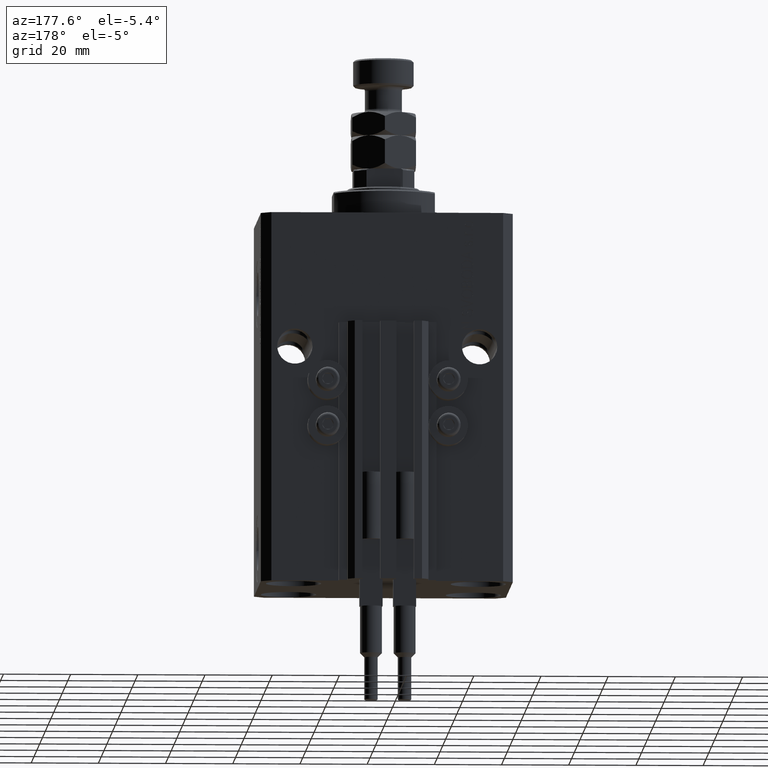
[diagram: clean part render]
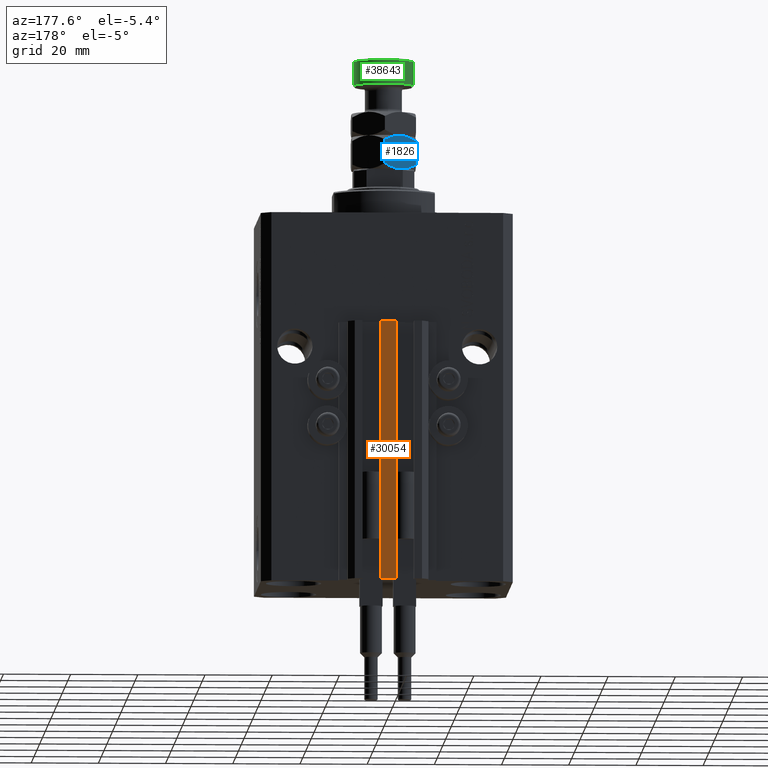
[diagram: same view with three faces highlighted in distinct colors, each labeled with its STEP entity id]
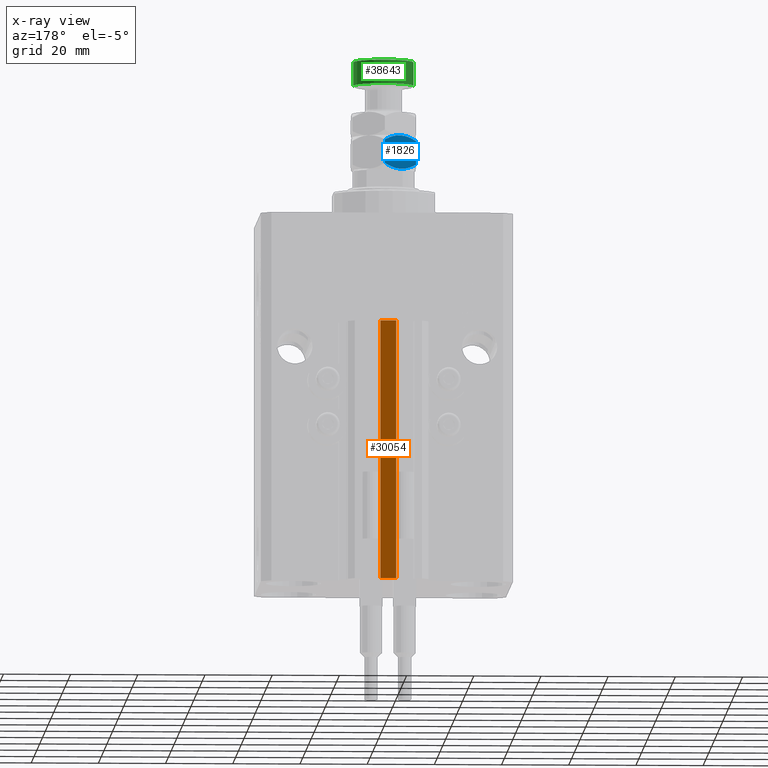
[diagram: x-ray of the same camera — body ghosted, the three highlighted faces saturated]
A machine part, auxiliary view with three faces highlighted in distinct colors.
The next image is the same camera in x-ray (body ghosted, the three faces saturated) — at least one of them is partly hidden behind the body in this view.
Their STEP definitions:

[orange] entity #30054 — the highlighted planar face has unit normal (0, -1, 0).
#56 = CARTESIAN_POINT ( 'NONE',  ( -2.350000000000003642, 35.50000000000001421, -110.0000000000000000 ) ) ;
#259 = EDGE_LOOP ( 'NONE', ( #10787, #25850, #9720, #36325 ) ) ;
#4440 = CARTESIAN_POINT ( 'NONE',  ( 2.349999999999999645, 35.50000000000001421, -33.00000000000000000 ) ) ;
#5366 = DIRECTION ( 'NONE',  ( 0.000000000000000000, -1.000000000000000000, 0.000000000000000000 ) ) ;
#9165 = CARTESIAN_POINT ( 'NONE',  ( -2.350000000000003642, 35.50000000000001421, -110.0000000000000000 ) ) ;
#9720 = ORIENTED_EDGE ( 'NONE', *, *, #24857, .F. ) ;
#10787 = ORIENTED_EDGE ( 'NONE', *, *, #25665, .T. ) ;
#11037 = LINE ( 'NONE', #56, #38716 ) ;
#12752 = LINE ( 'NONE', #27983, #32337 ) ;
#13667 = CARTESIAN_POINT ( 'NONE',  ( -2.350000000000003642, 35.50000000000001421, -33.00000000000000000 ) ) ;
#13846 = DIRECTION ( 'NONE',  ( 0.000000000000000000, -0.000000000000000000, -1.000000000000000000 ) ) ;
#19440 = AXIS2_PLACEMENT_3D ( 'NONE', #28330, #5366, #13846 ) ;
#20584 = VERTEX_POINT ( 'NONE', #9165 ) ;
#21822 = CARTESIAN_POINT ( 'NONE',  ( 2.349999999999999645, 35.50000000000001421, -110.0000000000000000 ) ) ;
#24839 = PLANE ( 'NONE',  #19440 ) ;
#24857 = EDGE_CURVE ( 'NONE', #20584, #25211, #31646, .T. ) ;
#25211 = VERTEX_POINT ( 'NONE', #21822 ) ;
#25665 = EDGE_CURVE ( 'NONE', #41445, #44903, #36358, .T. ) ;
#25850 = ORIENTED_EDGE ( 'NONE', *, *, #34434, .F. ) ;
#27901 = DIRECTION ( 'NONE',  ( 1.000000000000000000, 0.000000000000000000, 0.000000000000000000 ) ) ;
#27983 = CARTESIAN_POINT ( 'NONE',  ( 2.349999999999999645, 35.50000000000001421, -110.0000000000000000 ) ) ;
#28330 = CARTESIAN_POINT ( 'NONE',  ( -2.350000000000003642, 35.50000000000001421, -110.0000000000000000 ) ) ;
#28903 = DIRECTION ( 'NONE',  ( 1.000000000000000000, 0.000000000000000000, 0.000000000000000000 ) ) ;
#30054 = ADVANCED_FACE ( 'NONE', ( #47990 ), #24839, .F. ) ;
#31001 = DIRECTION ( 'NONE',  ( 0.000000000000000000, 0.000000000000000000, 1.000000000000000000 ) ) ;
#31646 = LINE ( 'NONE', #46820, #47902 ) ;
#32337 = VECTOR ( 'NONE', #38697, 1000.000000000000000 ) ;
#34434 = EDGE_CURVE ( 'NONE', #25211, #44903, #12752, .T. ) ;
#35212 = VECTOR ( 'NONE', #28903, 1000.000000000000000 ) ;
#35220 = EDGE_CURVE ( 'NONE', #20584, #41445, #11037, .T. ) ;
#35541 = CARTESIAN_POINT ( 'NONE',  ( -2.350000000000003642, 35.50000000000001421, -33.00000000000000000 ) ) ;
#36325 = ORIENTED_EDGE ( 'NONE', *, *, #35220, .T. ) ;
#36358 = LINE ( 'NONE', #13667, #35212 ) ;
#38697 = DIRECTION ( 'NONE',  ( 0.000000000000000000, 0.000000000000000000, 1.000000000000000000 ) ) ;
#38716 = VECTOR ( 'NONE', #31001, 1000.000000000000000 ) ;
#41445 = VERTEX_POINT ( 'NONE', #35541 ) ;
#44903 = VERTEX_POINT ( 'NONE', #4440 ) ;
#46820 = CARTESIAN_POINT ( 'NONE',  ( -2.350000000000003642, 35.50000000000001421, -110.0000000000000000 ) ) ;
#47902 = VECTOR ( 'NONE', #27901, 1000.000000000000000 ) ;
#47990 = FACE_OUTER_BOUND ( 'NONE', #259, .T. ) ;

[blue] entity #1826 — the highlighted planar face has unit normal (0.5, -0.866, 0).
#998 = EDGE_CURVE ( 'NONE', #32500, #24115, #13331, .T. ) ;
#1826 = ADVANCED_FACE ( 'NONE', ( #8954 ), #16441, .F. ) ;
#2787 = VERTEX_POINT ( 'NONE', #15564 ) ;
#3229 = CARTESIAN_POINT ( 'NONE',  ( -9.500000000000000000, 5.484827557301449552, 10.00000000000000000 ) ) ;
#3845 = ORIENTED_EDGE ( 'NONE', *, *, #31477, .F. ) ;
#3967 = CARTESIAN_POINT ( 'NONE',  ( -3.923784602134044341, 8.704257018318687145, 8.233160247311796338E-16 ) ) ;
#4713 = CARTESIAN_POINT ( 'NONE',  ( -3.111617971331824162, 9.173161641239182984, 0.1458756157754679816 ) ) ;
#5544 = CARTESIAN_POINT ( 'NONE',  ( -3.091726368128223879, 9.184646063703393537, 9.820258145287965590 ) ) ;
#6274 = CARTESIAN_POINT ( 'NONE',  ( -3.911732050025008789, 8.711215562523269895, 9.962294231267003752 ) ) ;
#6486 = CARTESIAN_POINT ( 'NONE',  ( -7.993405681187618406, 6.354660192827338960, 0.6741748824712797683 ) ) ;
#7975 = CARTESIAN_POINT ( 'NONE',  ( 0.000000000000000000, 10.96965511460288667, 10.00000000000000000 ) ) ;
#7999 = B_SPLINE_CURVE_WITH_KNOTS ( 'NONE', 3,
 ( #34644, #19187, #38876, #26681, #37886, #26933 ),
 .UNSPECIFIED., .F., .F.,
 ( 4, 2, 4 ),
 ( 0.005685775058177684575, 0.008508623398180318459, 0.01133147173818295321 ),
 .UNSPECIFIED. ) ;
#8345 = ORIENTED_EDGE ( 'NONE', *, *, #11902, .F. ) ;
#8466 = CARTESIAN_POINT ( 'NONE',  ( 7.043584025308272669E-16, 10.96965511460288667, 1.469655114602882007 ) ) ;
#8954 = FACE_OUTER_BOUND ( 'NONE', #29048, .T. ) ;
#10721 = CARTESIAN_POINT ( 'NONE',  ( -4.749999999999995559, 8.227241335952170331, 0.000000000000000000 ) ) ;
#11213 = DIRECTION ( 'NONE',  ( -0.000000000000000000, -0.000000000000000000, -1.000000000000000000 ) ) ;
#11714 = DIRECTION ( 'NONE',  ( 0.4999999999999995004, -0.8660254037844390407, 0.000000000000000000 ) ) ;
#11902 = EDGE_CURVE ( 'NONE', #36771, #2787, #35526, .T. ) ;
#13026 = CARTESIAN_POINT ( 'NONE',  ( -4.333978297711722938, 8.467431577757031036, 9.999999999999998224 ) ) ;
#13331 = B_SPLINE_CURVE_WITH_KNOTS ( 'NONE', 3,
 ( #19442, #3967, #4713, #30931, #34903, #8466 ),
 .UNSPECIFIED., .F., .F.,
 ( 4, 2, 4 ),
 ( 0.005685775058177695851, 0.008508623398180325398, 0.01133147173818295494 ),
 .UNSPECIFIED. ) ;
#14711 = CARTESIAN_POINT ( 'NONE',  ( -5.166021702288269957, 7.987051094147307850, 9.131015171401357655E-16 ) ) ;
#15564 = CARTESIAN_POINT ( 'NONE',  ( -4.749999999999993783, 8.227241335952166779, 10.00000000000000000 ) ) ;
#16264 = VECTOR ( 'NONE', #11213, 1000.000000000000000 ) ;
#16441 = PLANE ( 'NONE',  #23511 ) ;
#18892 = ORIENTED_EDGE ( 'NONE', *, *, #31455, .F. ) ;
#19113 = DIRECTION ( 'NONE',  ( -0.000000000000000000, -0.000000000000000000, -1.000000000000000000 ) ) ;
#19187 = CARTESIAN_POINT ( 'NONE',  ( -5.576215397865946777, 7.750225653585649077, 10.00000000000000000 ) ) ;
#19442 = CARTESIAN_POINT ( 'NONE',  ( -4.749999999999995559, 8.227241335952170331, 0.000000000000000000 ) ) ;
#19695 = DIRECTION ( 'NONE',  ( 0.8660254037844389297, 0.4999999999999994449, 0.000000000000000000 ) ) ;
#20080 = CARTESIAN_POINT ( 'NONE',  ( -9.500000000000000000, 5.484827557301450440, 1.469655114602887114 ) ) ;
#20767 = CARTESIAN_POINT ( 'NONE',  ( -2.690254945947323506, 9.416435697371474234, 9.716537861568806278 ) ) ;
#22207 = CARTESIAN_POINT ( 'NONE',  ( -9.500000000000000000, 5.484827557301450440, 1.469655114602887114 ) ) ;
#22617 = LINE ( 'NONE', #32919, #40593 ) ;
#22810 = CARTESIAN_POINT ( 'NONE',  ( -3.412354640325339130E-17, 10.96965511460288667, 8.530344885397118659 ) ) ;
#23511 = AXIS2_PLACEMENT_3D ( 'NONE', #7975, #11714, #19695 ) ;
#24115 = VERTEX_POINT ( 'NONE', #36783 ) ;
#25464 = CARTESIAN_POINT ( 'NONE',  ( -8.755131854751338594, 5.914877381471542961, 1.039605290432796147 ) ) ;
#25601 = ORIENTED_EDGE ( 'NONE', *, *, #998, .F. ) ;
#26681 = CARTESIAN_POINT ( 'NONE',  ( -7.990178599141542826, 6.356523349515339483, 9.328363030548731061 ) ) ;
#26933 = CARTESIAN_POINT ( 'NONE',  ( -9.500000000000000000, 5.484827557301450440, 8.530344885397113330 ) ) ;
#28360 = ORIENTED_EDGE ( 'NONE', *, *, #47917, .T. ) ;
#29048 = EDGE_LOOP ( 'NONE', ( #18892, #3845, #35321, #8345, #28360, #25601 ) ) ;
#29695 = CARTESIAN_POINT ( 'NONE',  ( -5.588267949974988547, 7.743267109381076096, 0.03770576873300184734 ) ) ;
#30931 = CARTESIAN_POINT ( 'NONE',  ( -1.509821400858455398, 10.09795932238899852, 0.6716369694512650534 ) ) ;
#31455 = EDGE_CURVE ( 'NONE', #41359, #32500, #39959, .T. ) ;
#31477 = EDGE_CURVE ( 'NONE', #40215, #41359, #33678, .T. ) ;
#31587 = CARTESIAN_POINT ( 'NONE',  ( -4.749999999999995559, 8.227241335952170331, 0.000000000000000000 ) ) ;
#32003 = CARTESIAN_POINT ( 'NONE',  ( -0.7448681452486597410, 10.53960529043279770, 8.960394709567207627 ) ) ;
#32500 = VERTEX_POINT ( 'NONE', #31587 ) ;
#32919 = CARTESIAN_POINT ( 'NONE',  ( 0.000000000000000000, 10.96965511460288667, 10.00000000000000000 ) ) ;
#33678 = LINE ( 'NONE', #3229, #16264 ) ;
#34644 = CARTESIAN_POINT ( 'NONE',  ( -4.749999999999993783, 8.227241335952166779, 10.00000000000000000 ) ) ;
#34903 = CARTESIAN_POINT ( 'NONE',  ( -0.7440058743609621050, 10.54010312276192174, 1.040103122761827148 ) ) ;
#35321 = ORIENTED_EDGE ( 'NONE', *, *, #46244, .F. ) ;
#35526 = B_SPLINE_CURVE_WITH_KNOTS ( 'NONE', 3,
 ( #40193, #32003, #43439, #20767, #5544, #6274, #13026, #39951 ),
 .UNSPECIFIED., .F., .F.,
 ( 4, 2, 2, 4 ),
 ( 2.544312669947217931E-07, 0.002843014744722341131, 0.004264394901450013070, 0.005685775058177684575 ),
 .UNSPECIFIED. ) ;
#36771 = VERTEX_POINT ( 'NONE', #22810 ) ;
#36783 = CARTESIAN_POINT ( 'NONE',  ( 7.043584025308272669E-16, 10.96965511460288667, 1.469655114602882007 ) ) ;
#37404 = CARTESIAN_POINT ( 'NONE',  ( -6.408273631871772125, 7.269836608200945349, 0.1797418547120365750 ) ) ;
#37886 = CARTESIAN_POINT ( 'NONE',  ( -8.755994125639032788, 5.914379549142415371, 8.959896877238170632 ) ) ;
#38876 = CARTESIAN_POINT ( 'NONE',  ( -6.388382028668171841, 7.281321030665156790, 9.854124384224531852 ) ) ;
#39951 = CARTESIAN_POINT ( 'NONE',  ( -4.749999999999993783, 8.227241335952166779, 10.00000000000000000 ) ) ;
#39959 = B_SPLINE_CURVE_WITH_KNOTS ( 'NONE', 3,
 ( #22207, #25464, #6486, #45364, #37404, #29695, #14711, #10721 ),
 .UNSPECIFIED., .F., .F.,
 ( 4, 2, 2, 4 ),
 ( 2.544312669946945821E-07, 0.002843014744722347636, 0.004264394901450021744, 0.005685775058177695851 ),
 .UNSPECIFIED. ) ;
#40193 = CARTESIAN_POINT ( 'NONE',  ( -3.412354640325339130E-17, 10.96965511460288667, 8.530344885397118659 ) ) ;
#40215 = VERTEX_POINT ( 'NONE', #42568 ) ;
#40593 = VECTOR ( 'NONE', #19113, 1000.000000000000000 ) ;
#41359 = VERTEX_POINT ( 'NONE', #20080 ) ;
#42568 = CARTESIAN_POINT ( 'NONE',  ( -9.500000000000000000, 5.484827557301450440, 8.530344885397113330 ) ) ;
#43439 = CARTESIAN_POINT ( 'NONE',  ( -1.506594318812380706, 10.09982247907699993, 9.325825117528726338 ) ) ;
#45364 = CARTESIAN_POINT ( 'NONE',  ( -6.809745054052670277, 7.038046974532860212, 0.2834621384311906689 ) ) ;
#46244 = EDGE_CURVE ( 'NONE', #2787, #40215, #7999, .T. ) ;
#47917 = EDGE_CURVE ( 'NONE', #36771, #24115, #22617, .T. ) ;

[green] entity #38643 — the highlighted cylindrical surface (edge-blend (fillet) strip) has radius 9 mm, axis along (-0, -0, -1).
#719 = LINE ( 'NONE', #7704, #36438 ) ;
#1032 = ORIENTED_EDGE ( 'NONE', *, *, #28634, .T. ) ;
#2122 = VERTEX_POINT ( 'NONE', #25687 ) ;
#3000 = DIRECTION ( 'NONE',  ( -0.000000000000000000, -0.000000000000000000, 1.000000000000000000 ) ) ;
#6447 = AXIS2_PLACEMENT_3D ( 'NONE', #20100, #25020, #31591 ) ;
#7704 = CARTESIAN_POINT ( 'NONE',  ( -9.000000000000000000, 0.000000000000000000, 33.00000000000000000 ) ) ;
#14830 = VERTEX_POINT ( 'NONE', #42693 ) ;
#17296 = DIRECTION ( 'NONE',  ( -0.000000000000000000, -0.000000000000000000, -1.000000000000000000 ) ) ;
#17320 = CARTESIAN_POINT ( 'NONE',  ( -9.000000000000000000, 0.000000000000000000, 25.49999999999999289 ) ) ;
#17987 = AXIS2_PLACEMENT_3D ( 'NONE', #48438, #17296, #40713 ) ;
#19308 = CARTESIAN_POINT ( 'NONE',  ( 9.000000000000000000, 1.102182119232617714E-15, 33.00000000000000000 ) ) ;
#20100 = CARTESIAN_POINT ( 'NONE',  ( 0.000000000000000000, 0.000000000000000000, 32.49999999999999289 ) ) ;
#21289 = FACE_OUTER_BOUND ( 'NONE', #29191, .T. ) ;
#22872 = ORIENTED_EDGE ( 'NONE', *, *, #43041, .F. ) ;
#23058 = LINE ( 'NONE', #19308, #36576 ) ;
#23454 = DIRECTION ( 'NONE',  ( 1.000000000000000000, 0.000000000000000000, 0.000000000000000000 ) ) ;
#25020 = DIRECTION ( 'NONE',  ( 0.000000000000000000, 0.000000000000000000, -1.000000000000000000 ) ) ;
#25687 = CARTESIAN_POINT ( 'NONE',  ( 9.000000000000000000, 1.102182119232617714E-15, 32.49999999999999289 ) ) ;
#28395 = VERTEX_POINT ( 'NONE', #35956 ) ;
#28634 = EDGE_CURVE ( 'NONE', #28395, #41479, #33684, .T. ) ;
#28988 = CARTESIAN_POINT ( 'NONE',  ( 0.000000000000000000, 0.000000000000000000, 25.49999999999999289 ) ) ;
#29191 = EDGE_LOOP ( 'NONE', ( #43902, #37749, #1032, #22872 ) ) ;
#30302 = DIRECTION ( 'NONE',  ( -0.000000000000000000, -0.000000000000000000, -1.000000000000000000 ) ) ;
#31591 = DIRECTION ( 'NONE',  ( 1.000000000000000000, 0.000000000000000000, 0.000000000000000000 ) ) ;
#33516 = CIRCLE ( 'NONE', #6447, 9.000000000000000000 ) ;
#33684 = CIRCLE ( 'NONE', #46405, 9.000000000000000000 ) ;
#35956 = CARTESIAN_POINT ( 'NONE',  ( 9.000000000000000000, 1.102182119232617714E-15, 25.49999999999999289 ) ) ;
#36438 = VECTOR ( 'NONE', #38628, 1000.000000000000000 ) ;
#36576 = VECTOR ( 'NONE', #30302, 1000.000000000000000 ) ;
#37749 = ORIENTED_EDGE ( 'NONE', *, *, #46467, .T. ) ;
#38628 = DIRECTION ( 'NONE',  ( -0.000000000000000000, -0.000000000000000000, -1.000000000000000000 ) ) ;
#38643 = ADVANCED_FACE ( 'NONE', ( #21289 ), #44205, .T. ) ;
#40713 = DIRECTION ( 'NONE',  ( -1.000000000000000000, 0.000000000000000000, 0.000000000000000000 ) ) ;
#41479 = VERTEX_POINT ( 'NONE', #17320 ) ;
#42693 = CARTESIAN_POINT ( 'NONE',  ( -9.000000000000000000, 0.000000000000000000, 32.49999999999999289 ) ) ;
#43041 = EDGE_CURVE ( 'NONE', #14830, #41479, #719, .T. ) ;
#43902 = ORIENTED_EDGE ( 'NONE', *, *, #49293, .T. ) ;
#44205 = CYLINDRICAL_SURFACE ( 'NONE', #17987, 9.000000000000000000 ) ;
#46405 = AXIS2_PLACEMENT_3D ( 'NONE', #28988, #3000, #23454 ) ;
#46467 = EDGE_CURVE ( 'NONE', #2122, #28395, #23058, .T. ) ;
#48438 = CARTESIAN_POINT ( 'NONE',  ( 0.000000000000000000, 0.000000000000000000, 33.00000000000000000 ) ) ;
#49293 = EDGE_CURVE ( 'NONE', #14830, #2122, #33516, .T. ) ;